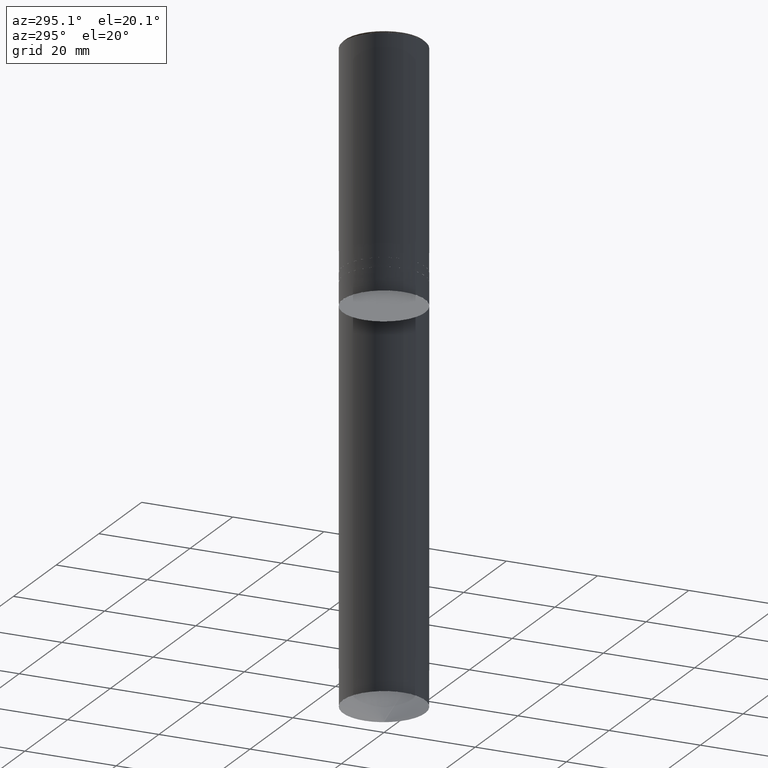
[diagram: clean part render]
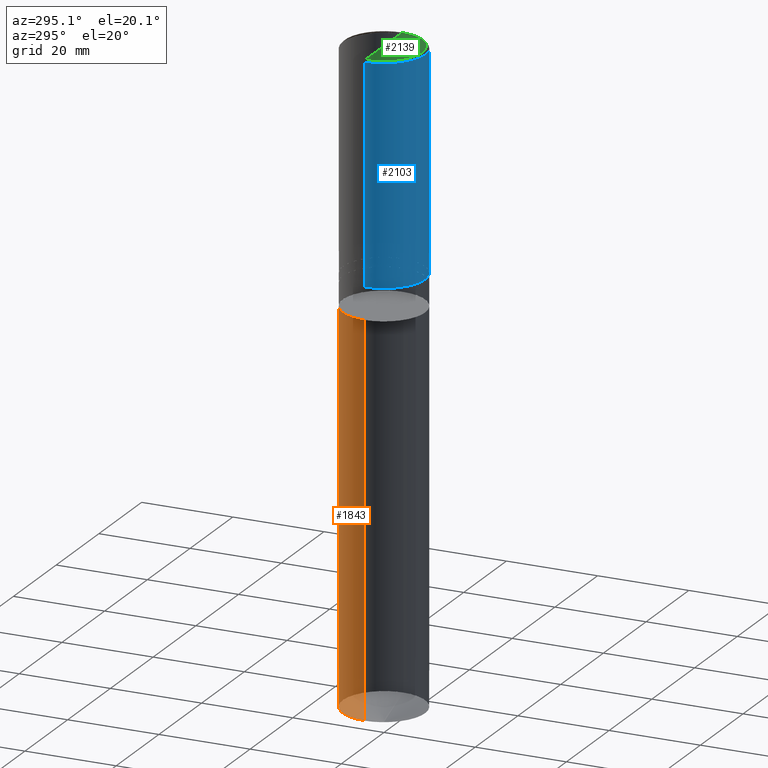
[diagram: same view with three faces highlighted in distinct colors, each labeled with its STEP entity id]
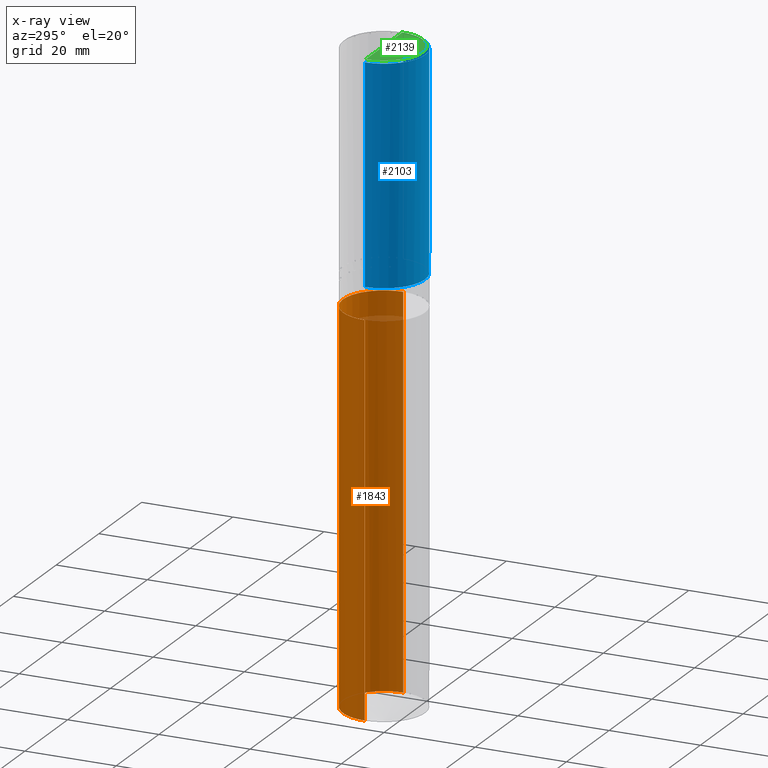
[diagram: x-ray of the same camera — body ghosted, the three highlighted faces saturated]
A machine part, auxiliary view with three faces highlighted in distinct colors.
The next image is the same camera in x-ray (body ghosted, the three faces saturated) — at least one of them is partly hidden behind the body in this view.
Their STEP definitions:

[orange] entity #1843 — the highlighted face is a freeform B-spline surface patch.
#1753=CARTESIAN_POINT('',(9.0,0.0,-91.724267891604));
#1754=CARTESIAN_POINT('',(9.0,9.0,-91.724267891604));
#1755=CARTESIAN_POINT('',(0.0,9.0,-91.724267891604));
#1756=CARTESIAN_POINT('',(-9.0,9.0,-91.724267891604));
#1757=CARTESIAN_POINT('',(-9.0,0.0,-91.724267891604));
#1758=CARTESIAN_POINT('',(9.0,0.0,-7.0));
#1759=CARTESIAN_POINT('',(9.0,9.0,-7.0));
#1760=CARTESIAN_POINT('',(0.0,9.0,-7.0));
#1761=CARTESIAN_POINT('',(-9.0,9.0,-7.0));
#1762=CARTESIAN_POINT('',(-9.0,0.0,-7.0));
#1824=(
BOUNDED_SURFACE()
B_SPLINE_SURFACE(1,2,(
(#1753,#1754,#1755,#1756,#1757),
(#1758,#1759,#1760,#1761,#1762)
), .UNSPECIFIED.,.F.,.F.,.F.)
B_SPLINE_SURFACE_WITH_KNOTS((2,2),(3,2,3),(
0.0,1.0),(
0.0,0.5,1.0), .UNSPECIFIED.)
GEOMETRIC_REPRESENTATION_ITEM()
RATIONAL_B_SPLINE_SURFACE(((1.0,0.707106781187,1.0,0.707106781187,1.0),
(1.0,0.707106781187,1.0,0.707106781187,1.0)
))
REPRESENTATION_ITEM('')
SURFACE()
);
#1825=(
BOUNDED_CURVE()
B_SPLINE_CURVE(2,(#1757,#1756,#1755,#1754,#1753),.UNSPECIFIED.,.F.,.F.)
B_SPLINE_CURVE_WITH_KNOTS((3,2,3),
(0.0,0.5,1.0),.UNSPECIFIED.)
CURVE()
GEOMETRIC_REPRESENTATION_ITEM()
RATIONAL_B_SPLINE_CURVE((1.0,0.707106781187,1.0,0.707106781187,1.0))
REPRESENTATION_ITEM('')
);
#1826=(
BOUNDED_CURVE()
B_SPLINE_CURVE(1,(#1753,#1758),.UNSPECIFIED.,.F.,.F.)
B_SPLINE_CURVE_WITH_KNOTS((2,2),
(0.0,1.0),.UNSPECIFIED.)
CURVE()
GEOMETRIC_REPRESENTATION_ITEM()
RATIONAL_B_SPLINE_CURVE((1.0,1.0))
REPRESENTATION_ITEM('')
);
#1827=(
BOUNDED_CURVE()
B_SPLINE_CURVE(2,(#1758,#1759,#1760,#1761,#1762),.UNSPECIFIED.,.F.,.F.)
B_SPLINE_CURVE_WITH_KNOTS((3,2,3),
(0.0,0.5,1.0),.UNSPECIFIED.)
CURVE()
GEOMETRIC_REPRESENTATION_ITEM()
RATIONAL_B_SPLINE_CURVE((1.0,0.707106781187,1.0,0.707106781187,1.0))
REPRESENTATION_ITEM('')
);
#1828=(
BOUNDED_CURVE()
B_SPLINE_CURVE(1,(#1762,#1757),.UNSPECIFIED.,.F.,.F.)
B_SPLINE_CURVE_WITH_KNOTS((2,2),
(0.0,1.0),.UNSPECIFIED.)
CURVE()
GEOMETRIC_REPRESENTATION_ITEM()
RATIONAL_B_SPLINE_CURVE((1.0,1.0))
REPRESENTATION_ITEM('')
);
#1829=VERTEX_POINT('',#1753);
#1830=VERTEX_POINT('',#1757);
#1831=VERTEX_POINT('',#1758);
#1832=VERTEX_POINT('',#1762);
#1833=EDGE_CURVE('',#1830,#1829,#1825,.T.);
#1834=EDGE_CURVE('',#1829,#1831,#1826,.T.);
#1835=EDGE_CURVE('',#1831,#1832,#1827,.T.);
#1836=EDGE_CURVE('',#1832,#1830,#1828,.T.);
#1837=ORIENTED_EDGE('',*,*,#1833,.T.);
#1838=ORIENTED_EDGE('',*,*,#1834,.T.);
#1839=ORIENTED_EDGE('',*,*,#1835,.T.);
#1840=ORIENTED_EDGE('',*,*,#1836,.T.);
#1841=EDGE_LOOP('',(#1837,#1838,#1839,#1840));
#1842=FACE_OUTER_BOUND('',#1841,.T.);
#1843=ADVANCED_FACE('',(#1842),#1824,.T.);

[blue] entity #2103 — the highlighted face is a freeform B-spline surface patch.
#1775=CARTESIAN_POINT('',(9.0,0.0,0.0));
#1779=CARTESIAN_POINT('',(-9.0,0.0,0.0));
#1780=CARTESIAN_POINT('',(9.0,0.0,47.5));
#1784=CARTESIAN_POINT('',(-9.0,0.0,47.5));
#1794=CARTESIAN_POINT('',(-9.0,-9.0,0.0));
#1795=CARTESIAN_POINT('',(0.0,-9.0,0.0));
#1796=CARTESIAN_POINT('',(9.0,-9.0,0.0));
#1797=CARTESIAN_POINT('',(-9.0,-9.0,47.5));
#1798=CARTESIAN_POINT('',(0.0,-9.0,47.5));
#1799=CARTESIAN_POINT('',(9.0,-9.0,47.5));
#2084=(
BOUNDED_SURFACE()
B_SPLINE_SURFACE(1,2,(
(#1779,#1794,#1795,#1796,#1775),
(#1784,#1797,#1798,#1799,#1780)
), .UNSPECIFIED.,.F.,.F.,.F.)
B_SPLINE_SURFACE_WITH_KNOTS((2,2),(3,2,3),(
0.0,1.0),(
0.0,0.5,1.0), .UNSPECIFIED.)
GEOMETRIC_REPRESENTATION_ITEM()
RATIONAL_B_SPLINE_SURFACE(((1.0,0.707106781187,1.0,0.707106781187,1.0),
(1.0,0.707106781187,1.0,0.707106781187,1.0)
))
REPRESENTATION_ITEM('')
SURFACE()
);
#2085=(
BOUNDED_CURVE()
B_SPLINE_CURVE(2,(#1775,#1796,#1795,#1794,#1779),.UNSPECIFIED.,.F.,.F.)
B_SPLINE_CURVE_WITH_KNOTS((3,2,3),
(0.0,0.5,1.0),.UNSPECIFIED.)
CURVE()
GEOMETRIC_REPRESENTATION_ITEM()
RATIONAL_B_SPLINE_CURVE((1.0,0.707106781187,1.0,0.707106781187,1.0))
REPRESENTATION_ITEM('')
);
#2086=(
BOUNDED_CURVE()
B_SPLINE_CURVE(1,(#1779,#1784),.UNSPECIFIED.,.F.,.F.)
B_SPLINE_CURVE_WITH_KNOTS((2,2),
(0.0,1.0),.UNSPECIFIED.)
CURVE()
GEOMETRIC_REPRESENTATION_ITEM()
RATIONAL_B_SPLINE_CURVE((1.0,1.0))
REPRESENTATION_ITEM('')
);
#2087=(
BOUNDED_CURVE()
B_SPLINE_CURVE(2,(#1784,#1797,#1798,#1799,#1780),.UNSPECIFIED.,.F.,.F.)
B_SPLINE_CURVE_WITH_KNOTS((3,2,3),
(0.0,0.5,1.0),.UNSPECIFIED.)
CURVE()
GEOMETRIC_REPRESENTATION_ITEM()
RATIONAL_B_SPLINE_CURVE((1.0,0.707106781187,1.0,0.707106781187,1.0))
REPRESENTATION_ITEM('')
);
#2088=(
BOUNDED_CURVE()
B_SPLINE_CURVE(1,(#1780,#1775),.UNSPECIFIED.,.F.,.F.)
B_SPLINE_CURVE_WITH_KNOTS((2,2),
(0.0,1.0),.UNSPECIFIED.)
CURVE()
GEOMETRIC_REPRESENTATION_ITEM()
RATIONAL_B_SPLINE_CURVE((1.0,1.0))
REPRESENTATION_ITEM('')
);
#2089=VERTEX_POINT('',#1775);
#2090=VERTEX_POINT('',#1779);
#2091=VERTEX_POINT('',#1780);
#2092=VERTEX_POINT('',#1784);
#2093=EDGE_CURVE('',#2089,#2090,#2085,.T.);
#2094=EDGE_CURVE('',#2090,#2092,#2086,.T.);
#2095=EDGE_CURVE('',#2092,#2091,#2087,.T.);
#2096=EDGE_CURVE('',#2091,#2089,#2088,.T.);
#2097=ORIENTED_EDGE('',*,*,#2093,.T.);
#2098=ORIENTED_EDGE('',*,*,#2094,.T.);
#2099=ORIENTED_EDGE('',*,*,#2095,.T.);
#2100=ORIENTED_EDGE('',*,*,#2096,.T.);
#2101=EDGE_LOOP('',(#2097,#2098,#2099,#2100));
#2102=FACE_OUTER_BOUND('',#2101,.T.);
#2103=ADVANCED_FACE('',(#2102),#2084,.T.);

[green] entity #2139 — the highlighted face is a freeform B-spline surface patch.
#1785=CARTESIAN_POINT('',(8.5,0.0,48.0));
#1789=CARTESIAN_POINT('',(-8.5,0.0,48.0));
#1790=CARTESIAN_POINT('',(0.0,0.0,48.0));
#1800=CARTESIAN_POINT('',(-8.5,-8.5,48.0));
#1801=CARTESIAN_POINT('',(0.0,-8.5,48.0));
#1802=CARTESIAN_POINT('',(8.5,-8.5,48.0));
#2124=(
BOUNDED_SURFACE()
B_SPLINE_SURFACE(1,2,(
(#1789,#1800,#1801,#1802,#1785),
(#1790,#1790,#1790,#1790,#1790)
), .UNSPECIFIED.,.F.,.F.,.F.)
B_SPLINE_SURFACE_WITH_KNOTS((2,2),(3,2,3),(
0.0,1.0),(
0.0,0.5,1.0), .UNSPECIFIED.)
GEOMETRIC_REPRESENTATION_ITEM()
RATIONAL_B_SPLINE_SURFACE(((1.0,0.707106781187,1.0,0.707106781187,1.0),
(1.0,0.707106781187,1.0,0.707106781187,1.0)
))
REPRESENTATION_ITEM('')
SURFACE()
);
#2125=(
BOUNDED_CURVE()
B_SPLINE_CURVE(2,(#1785,#1802,#1801,#1800,#1789),.UNSPECIFIED.,.F.,.F.)
B_SPLINE_CURVE_WITH_KNOTS((3,2,3),
(0.0,0.5,1.0),.UNSPECIFIED.)
CURVE()
GEOMETRIC_REPRESENTATION_ITEM()
RATIONAL_B_SPLINE_CURVE((1.0,0.707106781187,1.0,0.707106781187,1.0))
REPRESENTATION_ITEM('')
);
#2126=(
BOUNDED_CURVE()
B_SPLINE_CURVE(1,(#1789,#1790),.UNSPECIFIED.,.F.,.F.)
B_SPLINE_CURVE_WITH_KNOTS((2,2),
(0.0,1.0),.UNSPECIFIED.)
CURVE()
GEOMETRIC_REPRESENTATION_ITEM()
RATIONAL_B_SPLINE_CURVE((1.0,1.0))
REPRESENTATION_ITEM('')
);
#2127=(
BOUNDED_CURVE()
B_SPLINE_CURVE(1,(#1790,#1785),.UNSPECIFIED.,.F.,.F.)
B_SPLINE_CURVE_WITH_KNOTS((2,2),
(0.0,1.0),.UNSPECIFIED.)
CURVE()
GEOMETRIC_REPRESENTATION_ITEM()
RATIONAL_B_SPLINE_CURVE((1.0,1.0))
REPRESENTATION_ITEM('')
);
#2128=VERTEX_POINT('',#1785);
#2129=VERTEX_POINT('',#1789);
#2130=VERTEX_POINT('',#1790);
#2131=EDGE_CURVE('',#2128,#2129,#2125,.T.);
#2132=EDGE_CURVE('',#2129,#2130,#2126,.T.);
#2133=EDGE_CURVE('',#2130,#2128,#2127,.T.);
#2134=ORIENTED_EDGE('',*,*,#2131,.T.);
#2135=ORIENTED_EDGE('',*,*,#2132,.T.);
#2136=ORIENTED_EDGE('',*,*,#2133,.T.);
#2137=EDGE_LOOP('',(#2134,#2135,#2136));
#2138=FACE_OUTER_BOUND('',#2137,.T.);
#2139=ADVANCED_FACE('',(#2138),#2124,.T.);